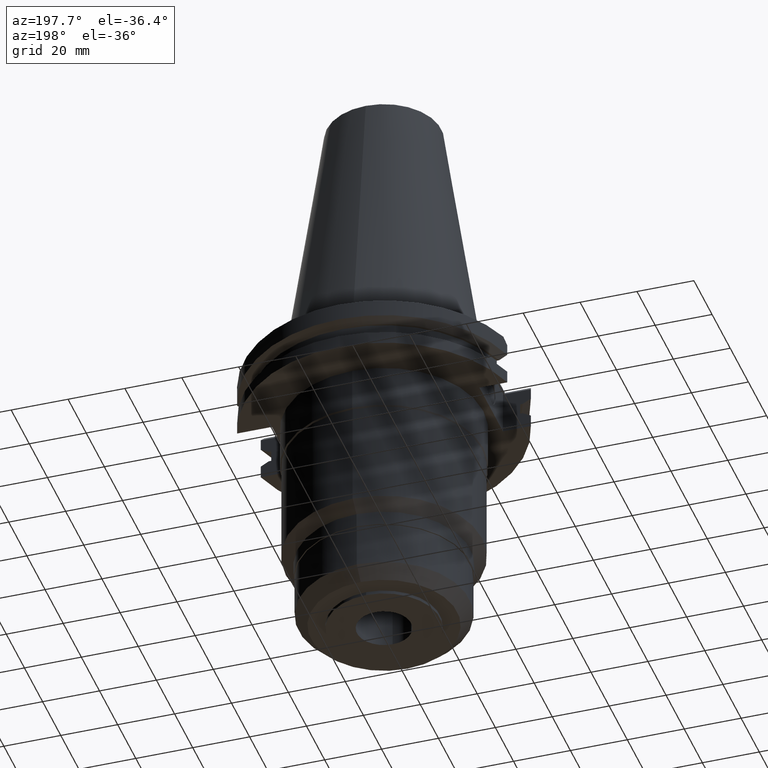
[diagram: clean part render]
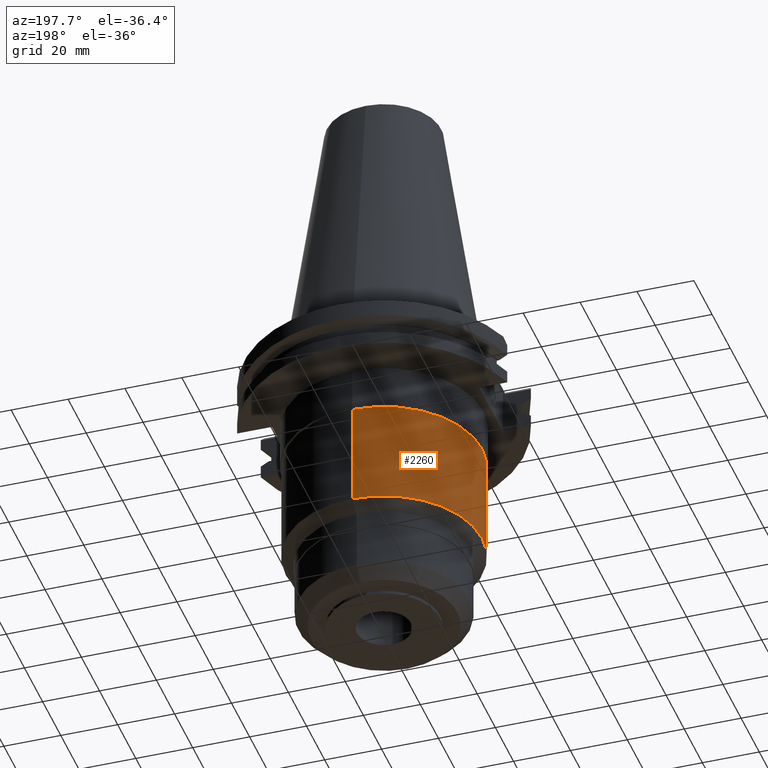
[diagram: same view with one face highlighted and labeled with its STEP entity id]
A machine part, auxiliary view. The second image highlights one B-rep face of the part: STEP entity #2260.
In plain terms, the highlighted cylindrical surface (partial cylindrical patch) has radius 34.5 mm, axis along (0, 0, -1).
Its self-contained STEP definition (entity closure, byte-faithful):
#900=CARTESIAN_POINT('',(0.E0,0.E0,-3.48E1));
#901=DIRECTION('',(0.E0,0.E0,-1.E0));
#902=DIRECTION('',(0.E0,-1.E0,0.E0));
#903=AXIS2_PLACEMENT_3D('',#900,#901,#902);
#908=DIRECTION('',(0.E0,0.E0,-1.E0));
#909=VECTOR('',#908,3.71E1);
#910=CARTESIAN_POINT('',(0.E0,-3.45E1,-3.48E1));
#911=LINE('',#910,#909);
#915=DIRECTION('',(0.E0,0.E0,-1.E0));
#916=VECTOR('',#915,3.71E1);
#917=CARTESIAN_POINT('',(0.E0,3.45E1,-3.48E1));
#918=LINE('',#917,#916);
#945=CARTESIAN_POINT('',(0.E0,0.E0,-7.19E1));
#946=DIRECTION('',(0.E0,0.E0,1.E0));
#947=DIRECTION('',(0.E0,1.E0,0.E0));
#948=AXIS2_PLACEMENT_3D('',#945,#946,#947);
#1440=CARTESIAN_POINT('',(0.E0,3.45E1,-7.19E1));
#1441=VERTEX_POINT('',#1440);
#1442=CARTESIAN_POINT('',(0.E0,-3.45E1,-7.19E1));
#1443=VERTEX_POINT('',#1442);
#1444=CARTESIAN_POINT('',(0.E0,3.45E1,-3.48E1));
#1445=VERTEX_POINT('',#1444);
#1446=CARTESIAN_POINT('',(0.E0,-3.45E1,-3.48E1));
#1447=VERTEX_POINT('',#1446);
#2246=CARTESIAN_POINT('',(0.E0,2.593312061874E-14,1.1176E2));
#2247=DIRECTION('',(0.E0,0.E0,-1.E0));
#2248=DIRECTION('',(0.E0,-1.E0,0.E0));
#2249=AXIS2_PLACEMENT_3D('',#2246,#2247,#2248);
#2250=CYLINDRICAL_SURFACE('',#2249,3.45E1);
#2252=ORIENTED_EDGE('',*,*,#2251,.F.);
#2253=ORIENTED_EDGE('',*,*,#2241,.F.);
#2255=ORIENTED_EDGE('',*,*,#2254,.T.);
#2257=ORIENTED_EDGE('',*,*,#2256,.F.);
#2258=EDGE_LOOP('',(#2252,#2253,#2255,#2257));
#2259=FACE_OUTER_BOUND('',#2258,.F.);
#904=CIRCLE('',#903,3.45E1);
#949=CIRCLE('',#948,3.45E1);
#2241=EDGE_CURVE('',#1447,#1445,#904,.T.);
#2251=EDGE_CURVE('',#1445,#1441,#918,.T.);
#2254=EDGE_CURVE('',#1447,#1443,#911,.T.);
#2256=EDGE_CURVE('',#1441,#1443,#949,.T.);
#2260=ADVANCED_FACE('',(#2259),#2250,.T.);